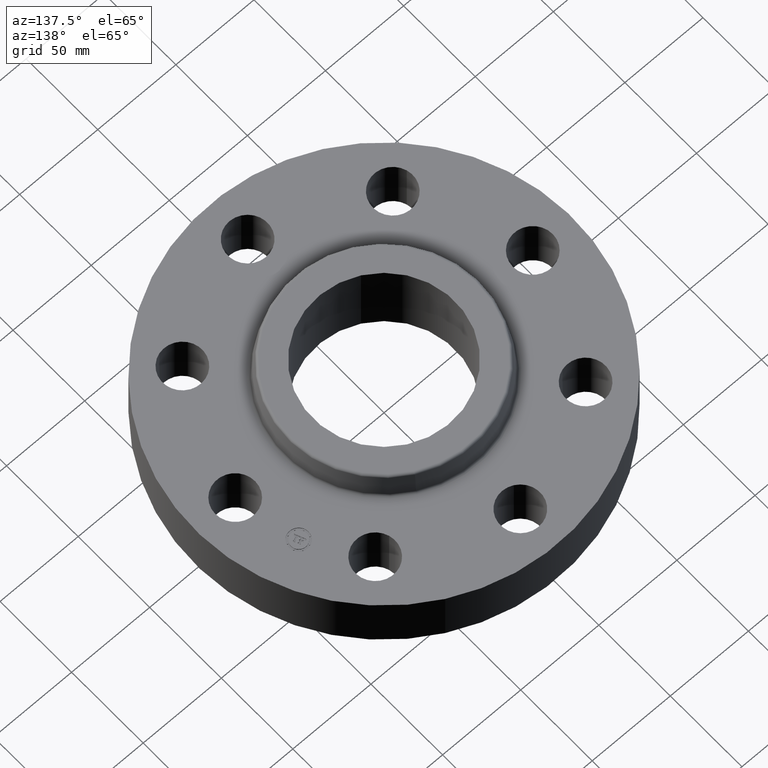
[diagram: clean part render]
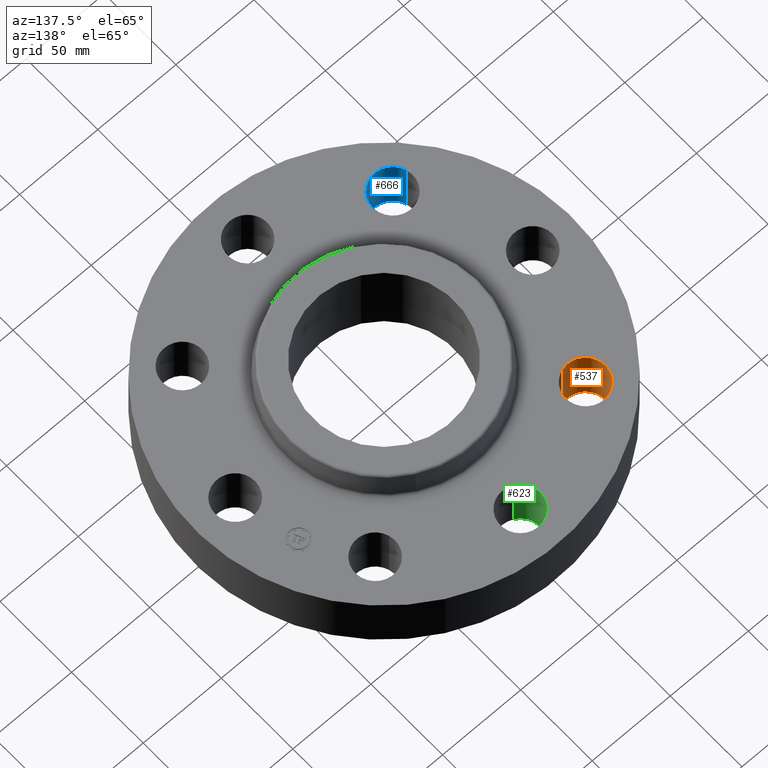
[diagram: same view with three faces highlighted in distinct colors, each labeled with its STEP entity id]
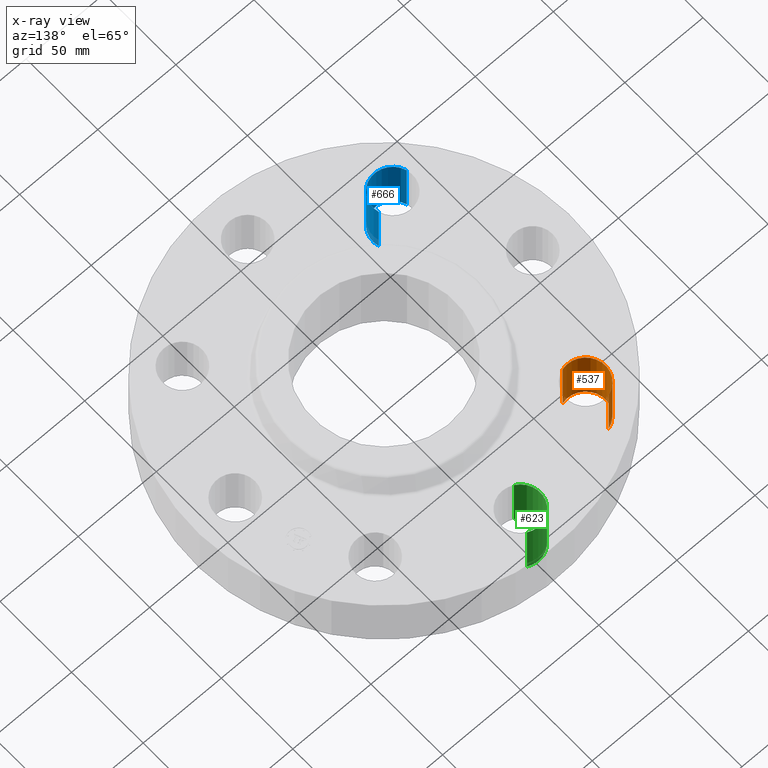
[diagram: x-ray of the same camera — body ghosted, the three highlighted faces saturated]
A machine part, auxiliary view with three faces highlighted in distinct colors.
The next image is the same camera in x-ray (body ghosted, the three faces saturated) — at least one of them is partly hidden behind the body in this view.
Their STEP definitions:

[orange] entity #537 — the highlighted cylindrical surface (edge-blend (fillet) strip) has radius 12.7 mm, axis along (0, 0, -1).
#454=AXIS2_PLACEMENT_3D('Circle Axis2P3D',#452,#453,$) ;
#510=AXIS2_PLACEMENT_3D('Cylinder Axis2P3D',#507,#508,#509) ;
#528=AXIS2_PLACEMENT_3D('Circle Axis2P3D',#526,#527,$) ;
#452=CARTESIAN_POINT('Axis2P3D Location',(-2.65165042946,2.65165042946,0.)) ;
#456=CARTESIAN_POINT('Vertex',(-2.51088066389,2.17187561447,0.)) ;
#458=CARTESIAN_POINT('Vertex',(-2.79242019503,3.13142524445,0.)) ;
#507=CARTESIAN_POINT('Axis2P3D Location',(-2.65165042946,2.65165042946,1.49606299213)) ;
#512=CARTESIAN_POINT('Line Origine',(-2.51088066389,2.17187561447,0.750000000003)) ;
#516=CARTESIAN_POINT('Vertex',(-2.51088066389,2.17187561447,1.50000000001)) ;
#519=CARTESIAN_POINT('Line Origine',(-2.79242019503,3.13142524445,0.750000000003)) ;
#523=CARTESIAN_POINT('Vertex',(-2.79242019503,3.13142524445,1.50000000001)) ;
#526=CARTESIAN_POINT('Axis2P3D Location',(-2.65165042946,2.65165042946,1.50000000001)) ;
#453=DIRECTION('Axis2P3D Direction',(0.,0.,-0.0393700787402)) ;
#508=DIRECTION('Axis2P3D Direction',(0.,0.,-0.0393700787402)) ;
#509=DIRECTION('Axis2P3D XDirection',(-0.0110842335096,0.0377775444876,0.)) ;
#513=DIRECTION('Vector Direction',(0.,0.,-0.0393700787402)) ;
#520=DIRECTION('Vector Direction',(0.,0.,-0.0393700787402)) ;
#527=DIRECTION('Axis2P3D Direction',(0.,0.,-0.0393700787402)) ;
#514=VECTOR('Line Direction',#513,0.0393700787402) ;
#521=VECTOR('Line Direction',#520,0.0393700787402) ;
#532=ORIENTED_EDGE('',*,*,#518,.F.) ;
#533=ORIENTED_EDGE('',*,*,#460,.T.) ;
#534=ORIENTED_EDGE('',*,*,#525,.T.) ;
#535=ORIENTED_EDGE('',*,*,#530,.F.) ;
#537=ADVANCED_FACE('PartBody',(#536),#511,.F.) ;
#455=CIRCLE('generated circle',#454,0.500000000002) ;
#529=CIRCLE('generated circle',#528,0.500000000002) ;
#511=CYLINDRICAL_SURFACE('generated cylinder',#510,0.500000000002) ;
#460=EDGE_CURVE('',#457,#459,#455,.T.) ;
#518=EDGE_CURVE('',#457,#517,#515,.F.) ;
#525=EDGE_CURVE('',#459,#524,#522,.F.) ;
#530=EDGE_CURVE('',#517,#524,#529,.T.) ;
#531=EDGE_LOOP('',(#532,#533,#534,#535)) ;
#536=FACE_OUTER_BOUND('',#531,.T.) ;
#515=LINE('Line',#512,#514) ;
#522=LINE('Line',#519,#521) ;
#457=VERTEX_POINT('',#456) ;
#459=VERTEX_POINT('',#458) ;
#517=VERTEX_POINT('',#516) ;
#524=VERTEX_POINT('',#523) ;

[blue] entity #666 — the highlighted cylindrical surface (edge-blend (fillet) strip) has radius 12.7 mm, axis along (-0, 0, -1).
#418=AXIS2_PLACEMENT_3D('Circle Axis2P3D',#416,#417,$) ;
#639=AXIS2_PLACEMENT_3D('Cylinder Axis2P3D',#636,#637,#638) ;
#657=AXIS2_PLACEMENT_3D('Circle Axis2P3D',#655,#656,$) ;
#416=CARTESIAN_POINT('Axis2P3D Location',(-2.65165042946,-2.65165042946,0.)) ;
#420=CARTESIAN_POINT('Vertex',(-2.17187561447,-2.51088066389,0.)) ;
#422=CARTESIAN_POINT('Vertex',(-3.13142524445,-2.79242019503,0.)) ;
#636=CARTESIAN_POINT('Axis2P3D Location',(-2.65165042946,-2.65165042946,1.49606299213)) ;
#641=CARTESIAN_POINT('Line Origine',(-2.17187561447,-2.51088066389,0.750000000003)) ;
#645=CARTESIAN_POINT('Vertex',(-2.17187561447,-2.51088066389,1.50000000001)) ;
#648=CARTESIAN_POINT('Line Origine',(-3.13142524445,-2.79242019503,0.750000000003)) ;
#652=CARTESIAN_POINT('Vertex',(-3.13142524445,-2.79242019503,1.50000000001)) ;
#655=CARTESIAN_POINT('Axis2P3D Location',(-2.65165042946,-2.65165042946,1.50000000001)) ;
#417=DIRECTION('Axis2P3D Direction',(0.,0.,-0.0393700787402)) ;
#637=DIRECTION('Axis2P3D Direction',(-0.,0.,-0.0393700787402)) ;
#638=DIRECTION('Axis2P3D XDirection',(-0.0377775444876,-0.0110842335096,0.)) ;
#642=DIRECTION('Vector Direction',(0.,0.,-0.0393700787402)) ;
#649=DIRECTION('Vector Direction',(0.,0.,-0.0393700787402)) ;
#656=DIRECTION('Axis2P3D Direction',(-0.,0.,-0.0393700787402)) ;
#643=VECTOR('Line Direction',#642,0.0393700787402) ;
#650=VECTOR('Line Direction',#649,0.0393700787402) ;
#661=ORIENTED_EDGE('',*,*,#647,.F.) ;
#662=ORIENTED_EDGE('',*,*,#424,.T.) ;
#663=ORIENTED_EDGE('',*,*,#654,.T.) ;
#664=ORIENTED_EDGE('',*,*,#659,.F.) ;
#666=ADVANCED_FACE('PartBody',(#665),#640,.F.) ;
#419=CIRCLE('generated circle',#418,0.500000000002) ;
#658=CIRCLE('generated circle',#657,0.500000000002) ;
#640=CYLINDRICAL_SURFACE('generated cylinder',#639,0.500000000002) ;
#424=EDGE_CURVE('',#421,#423,#419,.T.) ;
#647=EDGE_CURVE('',#421,#646,#644,.F.) ;
#654=EDGE_CURVE('',#423,#653,#651,.F.) ;
#659=EDGE_CURVE('',#646,#653,#658,.T.) ;
#660=EDGE_LOOP('',(#661,#662,#663,#664)) ;
#665=FACE_OUTER_BOUND('',#660,.T.) ;
#644=LINE('Line',#641,#643) ;
#651=LINE('Line',#648,#650) ;
#421=VERTEX_POINT('',#420) ;
#423=VERTEX_POINT('',#422) ;
#646=VERTEX_POINT('',#645) ;
#653=VERTEX_POINT('',#652) ;

[green] entity #623 — the highlighted cylindrical surface (edge-blend (fillet) strip) has radius 12.7 mm, axis along (0, 0, -1).
#472=AXIS2_PLACEMENT_3D('Circle Axis2P3D',#470,#471,$) ;
#596=AXIS2_PLACEMENT_3D('Cylinder Axis2P3D',#593,#594,#595) ;
#614=AXIS2_PLACEMENT_3D('Circle Axis2P3D',#612,#613,$) ;
#470=CARTESIAN_POINT('Axis2P3D Location',(-6.2941777774E-016,3.75000000002,0.)) ;
#474=CARTESIAN_POINT('Vertex',(-0.239712769303,3.31120871907,0.)) ;
#476=CARTESIAN_POINT('Vertex',(0.239712769303,4.18879128096,0.)) ;
#593=CARTESIAN_POINT('Axis2P3D Location',(-6.88863824523E-016,3.75000000002,1.49606299213)) ;
#598=CARTESIAN_POINT('Line Origine',(-0.239712769303,3.31120871907,0.750000000003)) ;
#602=CARTESIAN_POINT('Vertex',(-0.239712769303,3.31120871907,1.50000000001)) ;
#605=CARTESIAN_POINT('Line Origine',(0.239712769303,4.18879128096,0.750000000003)) ;
#609=CARTESIAN_POINT('Vertex',(0.239712769303,4.18879128096,1.50000000001)) ;
#612=CARTESIAN_POINT('Axis2P3D Location',(-6.88863824523E-016,3.75000000002,1.50000000001)) ;
#471=DIRECTION('Axis2P3D Direction',(0.,0.,-0.0393700787402)) ;
#594=DIRECTION('Axis2P3D Direction',(0.,0.,-0.0393700787402)) ;
#595=DIRECTION('Axis2P3D XDirection',(0.0188750212049,0.0345504945626,0.)) ;
#599=DIRECTION('Vector Direction',(0.,0.,-0.0393700787402)) ;
#606=DIRECTION('Vector Direction',(0.,0.,-0.0393700787402)) ;
#613=DIRECTION('Axis2P3D Direction',(0.,0.,-0.0393700787402)) ;
#600=VECTOR('Line Direction',#599,0.0393700787402) ;
#607=VECTOR('Line Direction',#606,0.0393700787402) ;
#618=ORIENTED_EDGE('',*,*,#604,.F.) ;
#619=ORIENTED_EDGE('',*,*,#478,.T.) ;
#620=ORIENTED_EDGE('',*,*,#611,.T.) ;
#621=ORIENTED_EDGE('',*,*,#616,.F.) ;
#623=ADVANCED_FACE('PartBody',(#622),#597,.F.) ;
#473=CIRCLE('generated circle',#472,0.500000000002) ;
#615=CIRCLE('generated circle',#614,0.500000000002) ;
#597=CYLINDRICAL_SURFACE('generated cylinder',#596,0.500000000002) ;
#478=EDGE_CURVE('',#475,#477,#473,.T.) ;
#604=EDGE_CURVE('',#475,#603,#601,.F.) ;
#611=EDGE_CURVE('',#477,#610,#608,.F.) ;
#616=EDGE_CURVE('',#603,#610,#615,.T.) ;
#617=EDGE_LOOP('',(#618,#619,#620,#621)) ;
#622=FACE_OUTER_BOUND('',#617,.T.) ;
#601=LINE('Line',#598,#600) ;
#608=LINE('Line',#605,#607) ;
#475=VERTEX_POINT('',#474) ;
#477=VERTEX_POINT('',#476) ;
#603=VERTEX_POINT('',#602) ;
#610=VERTEX_POINT('',#609) ;